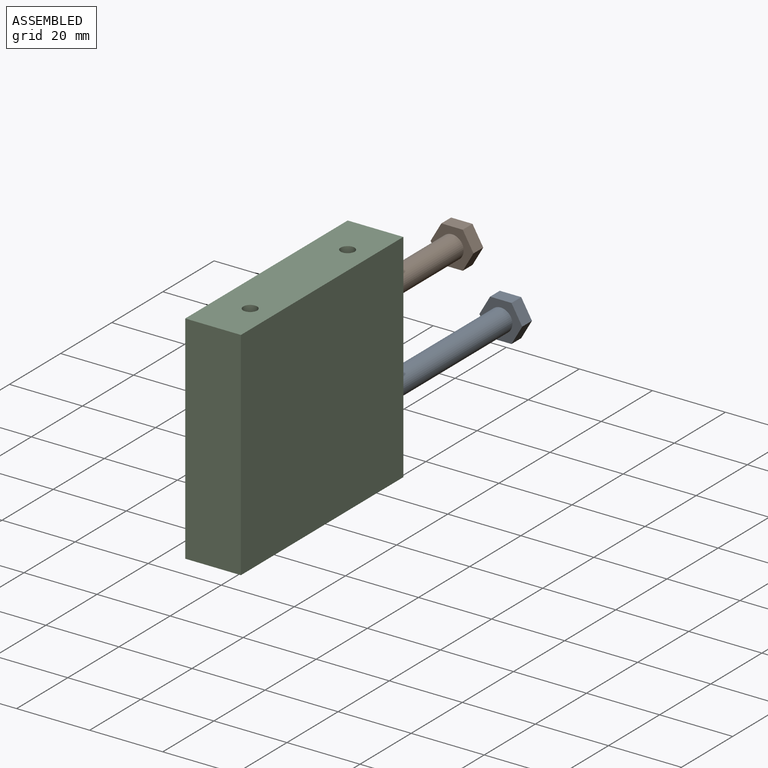
[diagram: assembled view]
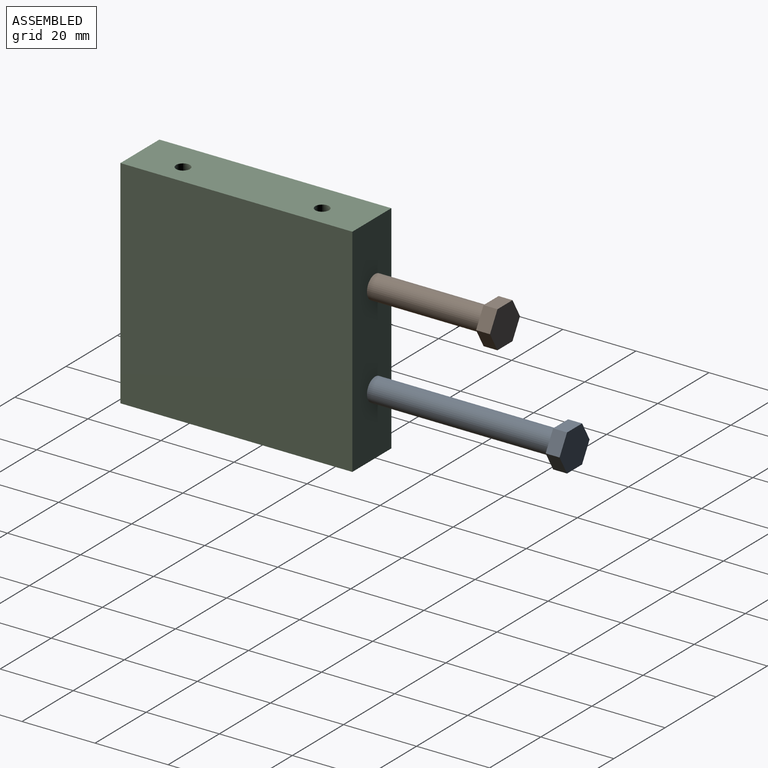
[diagram: assembled view, second angle]
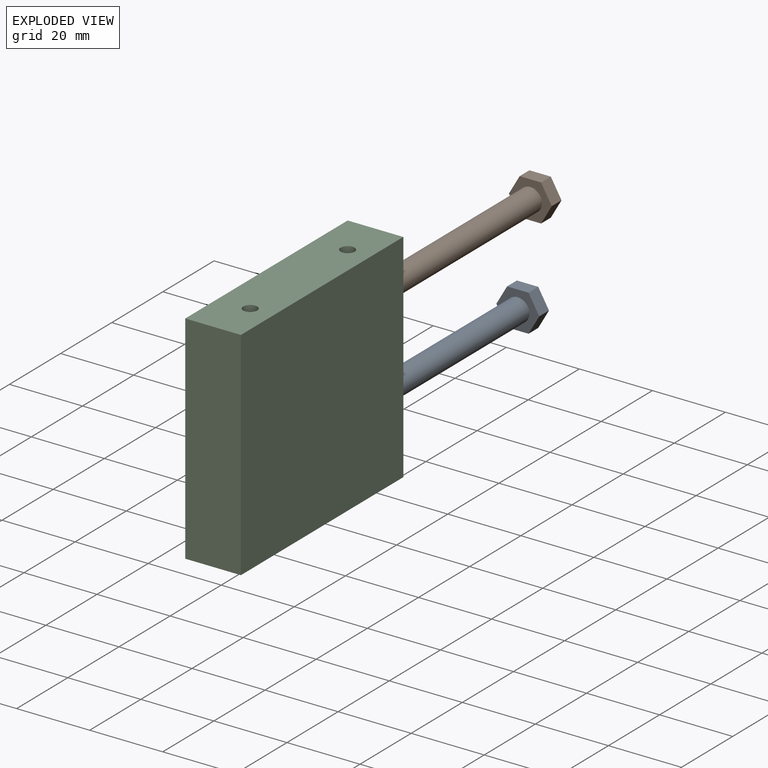
[diagram: exploded view]
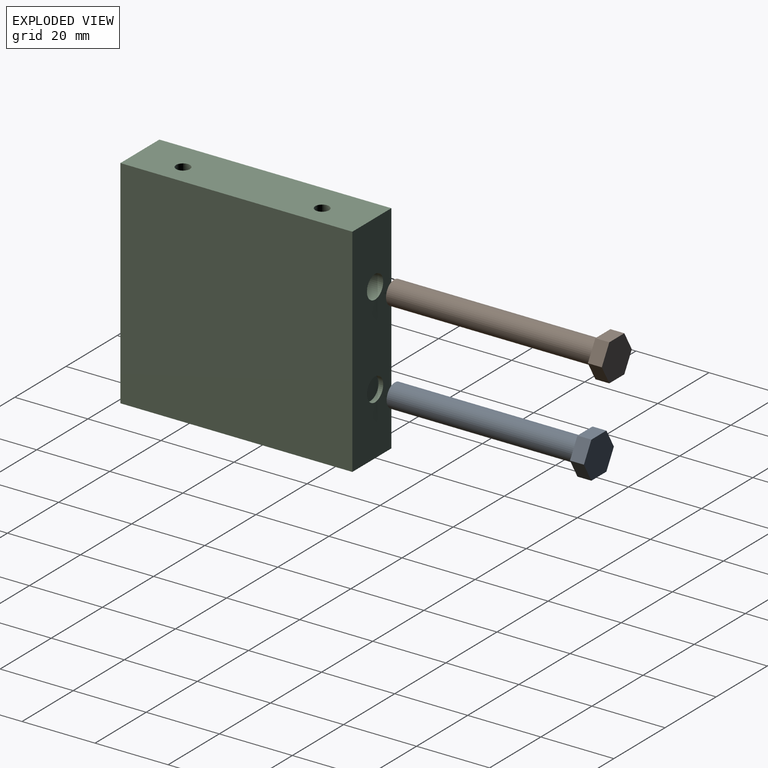
[diagram: exploded view, second angle]
ASSEMBLY  parts=3 mates=2
PART A: 10 faces, bbox 11.7x55.9x10.2 mm
  f0: cylinder r=3.17mm len=52.07mm, axis (0,1,0), area 1038.8mm2, adj f1,f9
  f1: plane 6.35x6.35mm, normal (0,1,0), area 31.7mm2, adj f0
  f2: plane 5.08x3.81mm, normal (0.87,0,0.5), area 22.3mm2, adj f3,f7,f8,f9
  f3: plane 5.87x3.81mm, normal (0,0,1), area 22.3mm2, adj f2,f4,f8,f9
  f4: plane 5.08x3.81mm, normal (-0.87,0,0.5), area 22.3mm2, adj f3,f5,f8,f9
  f5: plane 5.08x3.81mm, normal (-0.87,0,-0.5), area 22.3mm2, adj f4,f6,f8,f9
  f6: plane 5.87x3.81mm, normal (0,0,-1), area 22.3mm2, adj f5,f7,f8,f9
  f7: plane 5.08x3.81mm, normal (0.87,0,-0.5), area 22.3mm2, adj f2,f6,f8,f9
  f8: plane 11.73x10.16mm, normal (0,-1,0), area 89.4mm2, adj f2,f3,f4,f5,f6,f7
  f9: plane 11.73x10.16mm, normal (0,1,0), area 57.7mm2, adj f0,f2,f3,f4,f5,f6,f7
PART B: 10 faces, bbox 11.7x61x10.2 mm
  f0: cylinder r=3.17mm len=57.15mm, axis (0,1,0), area 1140.1mm2, adj f1,f9
  f1: plane 6.35x6.35mm, normal (0,1,0), area 31.7mm2, adj f0
  f2: plane 5.08x3.81mm, normal (0.87,0,0.5), area 22.3mm2, adj f3,f7,f8,f9
  f3: plane 5.87x3.81mm, normal (0,0,1), area 22.3mm2, adj f2,f4,f8,f9
  f4: plane 5.08x3.81mm, normal (-0.87,0,0.5), area 22.3mm2, adj f3,f5,f8,f9
  f5: plane 5.08x3.81mm, normal (-0.87,0,-0.5), area 22.3mm2, adj f4,f6,f8,f9
  f6: plane 5.87x3.81mm, normal (0,0,-1), area 22.3mm2, adj f5,f7,f8,f9
  f7: plane 5.08x3.81mm, normal (0.87,0,-0.5), area 22.3mm2, adj f2,f6,f8,f9
  f8: plane 11.73x10.16mm, normal (0,-1,0), area 89.4mm2, adj f2,f3,f4,f5,f6,f7
  f9: plane 11.73x10.16mm, normal (0,1,0), area 57.7mm2, adj f0,f2,f3,f4,f5,f6,f7
PART C: 18 faces, bbox 15.2x63.5x59.4 mm
  f0: plane 63.5x15.24mm, normal (0,0,1), area 944.9mm2, adj f1,f3,f4,f5,f6,f8
  f1: plane 63.5x59.44mm, normal (-1,0,0), area 3774.2mm2, adj f0,f2,f4,f5
  f2: plane 63.5x15.24mm, normal (0,0,-1), area 944.9mm2, adj f1,f3,f4,f5,f10,f12
  f3: plane 63.5x59.44mm, normal (1,0,0), area 3774.2mm2, adj f0,f2,f4,f5
  f4: plane 59.44x15.24mm, normal (0,-1,0), area 905.8mm2, adj f0,f1,f2,f3
  f5: plane 59.44x15.24mm, normal (0,1,0), area 842.5mm2, adj f0,f1,f2,f3,f14,f16
  f6: cylinder r=1.91mm len=6.35mm, axis (0,0,1), area 76mm2, adj f0,f7
  f7: plane 3.81x3.81mm, normal (0,0,1), area 11.4mm2, adj f6
  f8: cylinder r=1.91mm len=6.35mm, axis (0,0,1), area 76mm2, adj f0,f9
  f9: plane 3.81x3.81mm, normal (0,0,1), area 11.4mm2, adj f8
  f10: cylinder r=1.91mm len=6.35mm, axis (0,0,-1), area 76mm2, adj f2,f11
  f11: plane 3.81x3.81mm, normal (0,0,-1), area 11.4mm2, adj f10
  f12: cylinder r=1.91mm len=6.35mm, axis (0,0,-1), area 76mm2, adj f2,f13
  f13: plane 3.81x3.81mm, normal (0,0,-1), area 11.4mm2, adj f12
  f14: cylinder r=3.17mm len=25.4mm, axis (0,1,0), area 506.7mm2, adj f5,f15
  f15: plane 6.35x6.35mm, normal (0,1,0), area 31.7mm2, adj f14
  f16: cylinder r=3.17mm len=6.35mm, axis (0,1,0), area 25.3mm2, adj f5,f17
  f17: plane 6.35x6.35mm, normal (0,1,0), area 31.7mm2, adj f16
PLACE A rot(axis=(1,0,0),180deg) t=(-1.27,56.51,-12.7)mm
PLACE B rot(axis=(1,0,0),180deg) t=(-1.27,34.92,12.7)mm
PLACE C at identity
MATE revolute A.f0 <-> C.f16  axis (0,-1,0) through (-1.27,30.48,-12.7)mm
MATE revolute B.f0 <-> C.f14  axis (0,-1,0) through (-1.27,6.35,12.7)mm
